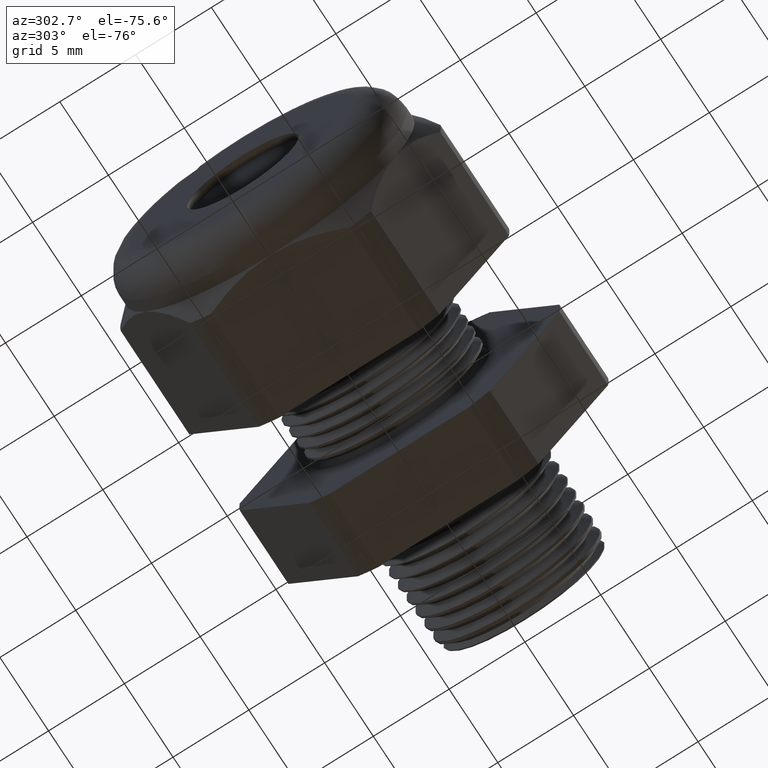
[diagram: clean part render]
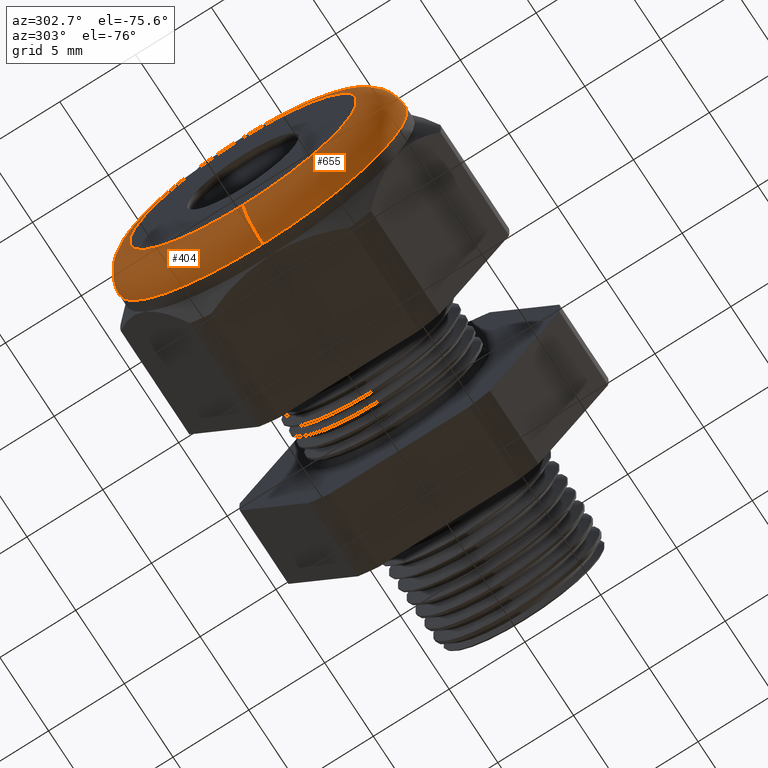
[diagram: same view with one multi-face feature highlighted, each face labeled with its STEP entity id]
A machine part, auxiliary view. The highlighted faces form ONE feature: a constant-radius fillet chain: 2 tangent blend faces with common blend radius 2.032 mm. The faces share edges in the B-rep.
Their STEP definitions:
[1] entity #404 (Torus):
#404 = ADVANCED_FACE ( 'NONE', ( #2165 ), #2164, .T. ) ;
#405 = EDGE_LOOP ( 'NONE', ( #545, #549, #552, #555 ) ) ;
#545 = ORIENTED_EDGE ( 'NONE', *, *, #546, .F. ) ;
#546 = EDGE_CURVE ( 'NONE', #547, #548, #2457, .T. ) ;
#547 = VERTEX_POINT ( 'NONE', #2452 ) ;
#548 = VERTEX_POINT ( 'NONE', #2451 ) ;
#549 = ORIENTED_EDGE ( 'NONE', *, *, #550, .T. ) ;
#550 = EDGE_CURVE ( 'NONE', #547, #551, #2450, .T. ) ;
#551 = VERTEX_POINT ( 'NONE', #2445 ) ;
#552 = ORIENTED_EDGE ( 'NONE', *, *, #553, .F. ) ;
#553 = EDGE_CURVE ( 'NONE', #554, #551, #2444, .T. ) ;
#554 = VERTEX_POINT ( 'NONE', #2439 ) ;
#555 = ORIENTED_EDGE ( 'NONE', *, *, #556, .F. ) ;
#556 = EDGE_CURVE ( 'NONE', #548, #554, #2437, .T. ) ;
#2160 = DIRECTION ( 'NONE',  ( 0.0000000000000000000, 0.0000000000000000000, 1.000000000000000000 ) ) ;
#2161 = DIRECTION ( 'NONE',  ( -1.000000000000000000, 0.0000000000000000000, 0.0000000000000000000 ) ) ;
#2162 = CARTESIAN_POINT ( 'NONE',  ( -1.059999999999999800, 0.0000000000000000000, 0.0000000000000000000 ) ) ;
#2163 = AXIS2_PLACEMENT_3D ( 'NONE', #2162, #2161, #2160 ) ;
#2164 = TOROIDAL_SURFACE ( 'NONE', #2163, 0.2950000000000001000, 0.08000000000000000200 ) ;
#2165 = FACE_OUTER_BOUND ( 'NONE', #405, .T. ) ;
#2433 = DIRECTION ( 'NONE',  ( 0.0000000000000000000, 0.0000000000000000000, -1.000000000000000000 ) ) ;
#2434 = DIRECTION ( 'NONE',  ( 0.0000000000000000000, -1.000000000000000000, 0.0000000000000000000 ) ) ;
#2435 = CARTESIAN_POINT ( 'NONE',  ( -1.059999999999999800, 0.0000000000000000000, 0.2950000000000001000 ) ) ;
#2436 = AXIS2_PLACEMENT_3D ( 'NONE', #2435, #2434, #2433 ) ;
#2437 = CIRCLE ( 'NONE', #2436, 0.08000000000000000200 ) ;
#2439 = CARTESIAN_POINT ( 'NONE',  ( -1.139999999999999900, 0.0000000000000000000, 0.2950000000000001000 ) ) ;
#2440 = DIRECTION ( 'NONE',  ( 0.0000000000000000000, 0.0000000000000000000, 1.000000000000000000 ) ) ;
#2441 = DIRECTION ( 'NONE',  ( -1.000000000000000000, 0.0000000000000000000, 0.0000000000000000000 ) ) ;
#2442 = CARTESIAN_POINT ( 'NONE',  ( -1.139999999999999900, 0.0000000000000000000, 0.0000000000000000000 ) ) ;
#2443 = AXIS2_PLACEMENT_3D ( 'NONE', #2442, #2441, #2440 ) ;
#2444 = CIRCLE ( 'NONE', #2443, 0.2950000000000001000 ) ;
#2445 = CARTESIAN_POINT ( 'NONE',  ( -1.139999999999999900, 4.102566777143634000E-017, -0.2950000000000001000 ) ) ;
#2446 = DIRECTION ( 'NONE',  ( 0.0000000000000000000, -1.224646799147353500E-016, 1.000000000000000000 ) ) ;
#2447 = DIRECTION ( 'NONE',  ( 0.0000000000000000000, 1.000000000000000000, 1.224646799147353200E-016 ) ) ;
#2448 = CARTESIAN_POINT ( 'NONE',  ( -1.059999999999999800, 3.612708057484693200E-017, -0.2950000000000001000 ) ) ;
#2449 = AXIS2_PLACEMENT_3D ( 'NONE', #2448, #2447, #2446 ) ;
#2450 = CIRCLE ( 'NONE', #2449, 0.08000000000000000200 ) ;
#2451 = CARTESIAN_POINT ( 'NONE',  ( -1.059999999999999800, 4.592425496802576100E-017, 0.3750000000000001100 ) ) ;
#2452 = CARTESIAN_POINT ( 'NONE',  ( -1.059999999999999800, 0.0000000000000000000, -0.3750000000000001100 ) ) ;
#2453 = DIRECTION ( 'NONE',  ( 0.0000000000000000000, 0.0000000000000000000, 1.000000000000000000 ) ) ;
#2454 = DIRECTION ( 'NONE',  ( 1.000000000000000000, 0.0000000000000000000, 0.0000000000000000000 ) ) ;
#2455 = CARTESIAN_POINT ( 'NONE',  ( -1.059999999999999800, 0.0000000000000000000, 0.0000000000000000000 ) ) ;
#2456 = AXIS2_PLACEMENT_3D ( 'NONE', #2455, #2454, #2453 ) ;
#2457 = CIRCLE ( 'NONE', #2456, 0.3750000000000001100 ) ;
[2] entity #655 (Torus):
#547 = VERTEX_POINT ( 'NONE', #2452 ) ;
#548 = VERTEX_POINT ( 'NONE', #2451 ) ;
#550 = EDGE_CURVE ( 'NONE', #547, #551, #2450, .T. ) ;
#551 = VERTEX_POINT ( 'NONE', #2445 ) ;
#554 = VERTEX_POINT ( 'NONE', #2439 ) ;
#556 = EDGE_CURVE ( 'NONE', #548, #554, #2437, .T. ) ;
#655 = ADVANCED_FACE ( 'NONE', ( #2620 ), #2615, .T. ) ;
#656 = EDGE_LOOP ( 'NONE', ( #657, #658, #659, #660 ) ) ;
#657 = ORIENTED_EDGE ( 'NONE', *, *, #550, .F. ) ;
#658 = ORIENTED_EDGE ( 'NONE', *, *, #1148, .F. ) ;
#659 = ORIENTED_EDGE ( 'NONE', *, *, #556, .T. ) ;
#660 = ORIENTED_EDGE ( 'NONE', *, *, #1140, .F. ) ;
#1140 = EDGE_CURVE ( 'NONE', #551, #554, #3501, .T. ) ;
#1148 = EDGE_CURVE ( 'NONE', #548, #547, #3494, .T. ) ;
#2433 = DIRECTION ( 'NONE',  ( 0.0000000000000000000, 0.0000000000000000000, -1.000000000000000000 ) ) ;
#2434 = DIRECTION ( 'NONE',  ( 0.0000000000000000000, -1.000000000000000000, 0.0000000000000000000 ) ) ;
#2435 = CARTESIAN_POINT ( 'NONE',  ( -1.059999999999999800, 0.0000000000000000000, 0.2950000000000001000 ) ) ;
#2436 = AXIS2_PLACEMENT_3D ( 'NONE', #2435, #2434, #2433 ) ;
#2437 = CIRCLE ( 'NONE', #2436, 0.08000000000000000200 ) ;
#2439 = CARTESIAN_POINT ( 'NONE',  ( -1.139999999999999900, 0.0000000000000000000, 0.2950000000000001000 ) ) ;
#2445 = CARTESIAN_POINT ( 'NONE',  ( -1.139999999999999900, 4.102566777143634000E-017, -0.2950000000000001000 ) ) ;
#2446 = DIRECTION ( 'NONE',  ( 0.0000000000000000000, -1.224646799147353500E-016, 1.000000000000000000 ) ) ;
#2447 = DIRECTION ( 'NONE',  ( 0.0000000000000000000, 1.000000000000000000, 1.224646799147353200E-016 ) ) ;
#2448 = CARTESIAN_POINT ( 'NONE',  ( -1.059999999999999800, 3.612708057484693200E-017, -0.2950000000000001000 ) ) ;
#2449 = AXIS2_PLACEMENT_3D ( 'NONE', #2448, #2447, #2446 ) ;
#2450 = CIRCLE ( 'NONE', #2449, 0.08000000000000000200 ) ;
#2451 = CARTESIAN_POINT ( 'NONE',  ( -1.059999999999999800, 4.592425496802576100E-017, 0.3750000000000001100 ) ) ;
#2452 = CARTESIAN_POINT ( 'NONE',  ( -1.059999999999999800, 0.0000000000000000000, -0.3750000000000001100 ) ) ;
#2611 = DIRECTION ( 'NONE',  ( 0.0000000000000000000, 0.0000000000000000000, 1.000000000000000000 ) ) ;
#2612 = DIRECTION ( 'NONE',  ( -1.000000000000000000, 0.0000000000000000000, 0.0000000000000000000 ) ) ;
#2613 = CARTESIAN_POINT ( 'NONE',  ( -1.059999999999999800, 0.0000000000000000000, 0.0000000000000000000 ) ) ;
#2614 = AXIS2_PLACEMENT_3D ( 'NONE', #2613, #2612, #2611 ) ;
#2615 = TOROIDAL_SURFACE ( 'NONE', #2614, 0.2950000000000001000, 0.08000000000000000200 ) ;
#2620 = FACE_OUTER_BOUND ( 'NONE', #656, .T. ) ;
#3486 = DIRECTION ( 'NONE',  ( 0.0000000000000000000, 0.0000000000000000000, 1.000000000000000000 ) ) ;
#3487 = DIRECTION ( 'NONE',  ( 1.000000000000000000, 0.0000000000000000000, 0.0000000000000000000 ) ) ;
#3488 = CARTESIAN_POINT ( 'NONE',  ( -1.059999999999999800, 0.0000000000000000000, 0.0000000000000000000 ) ) ;
#3489 = AXIS2_PLACEMENT_3D ( 'NONE', #3488, #3487, #3486 ) ;
#3494 = CIRCLE ( 'NONE', #3489, 0.3750000000000001100 ) ;
#3497 = DIRECTION ( 'NONE',  ( 0.0000000000000000000, 0.0000000000000000000, 1.000000000000000000 ) ) ;
#3498 = DIRECTION ( 'NONE',  ( -1.000000000000000000, 0.0000000000000000000, 0.0000000000000000000 ) ) ;
#3499 = CARTESIAN_POINT ( 'NONE',  ( -1.139999999999999900, 0.0000000000000000000, 0.0000000000000000000 ) ) ;
#3500 = AXIS2_PLACEMENT_3D ( 'NONE', #3499, #3498, #3497 ) ;
#3501 = CIRCLE ( 'NONE', #3500, 0.2950000000000001000 ) ;